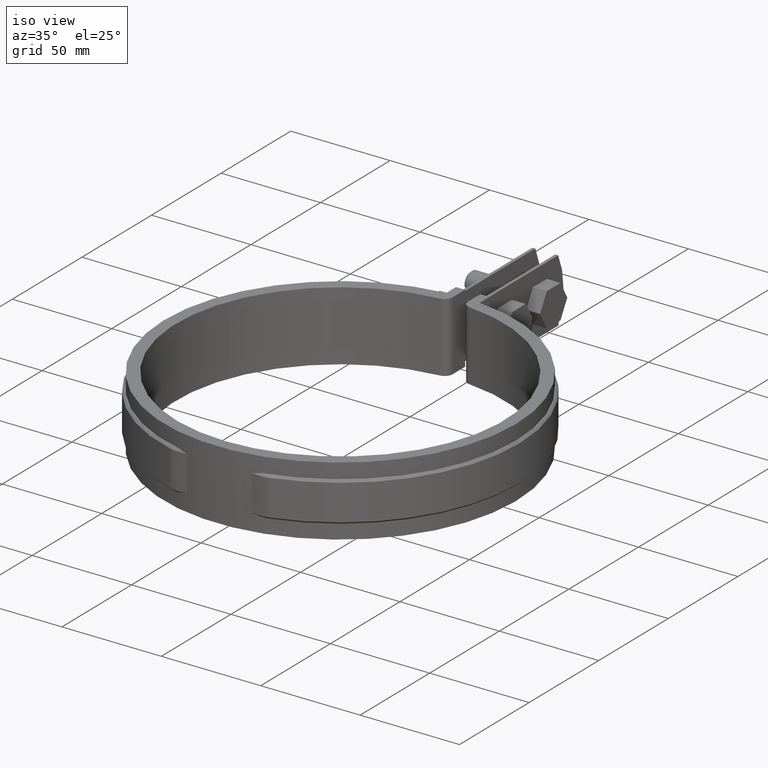
[diagram: clean part render]
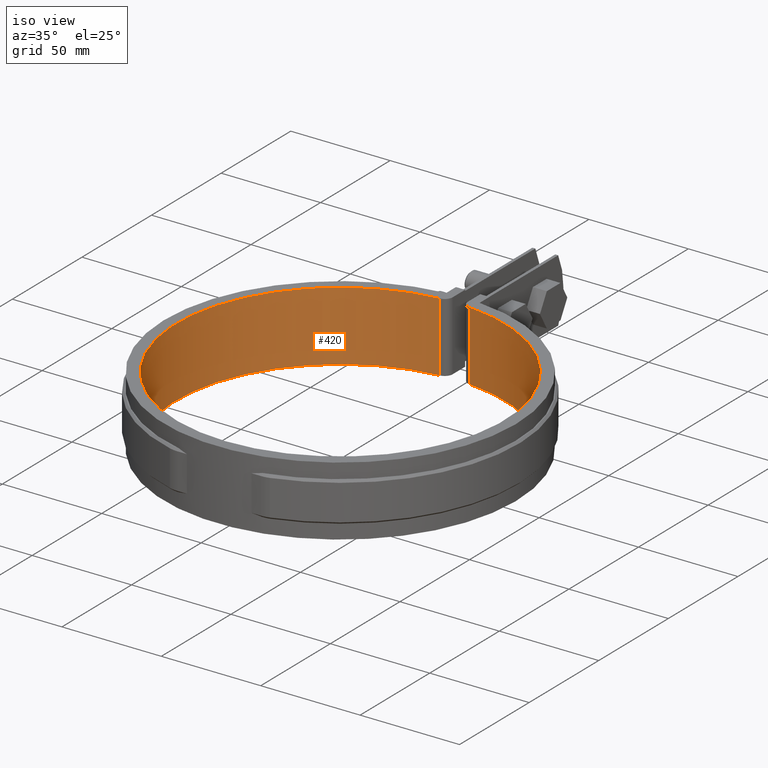
[diagram: tour spotlight — one face highlighted and labeled with its STEP entity id]
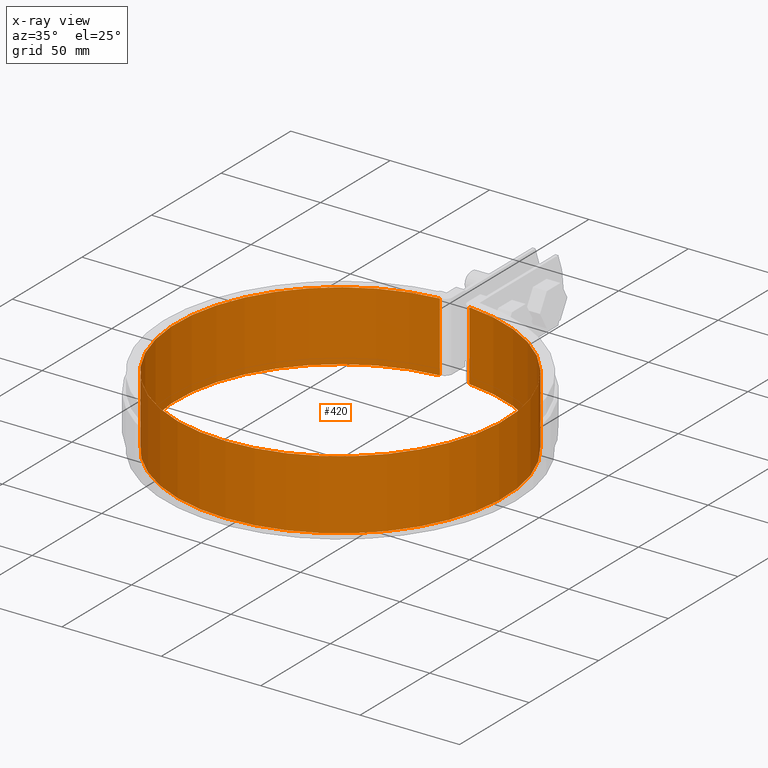
[diagram: x-ray of the same camera — body ghosted, this tour face saturated]
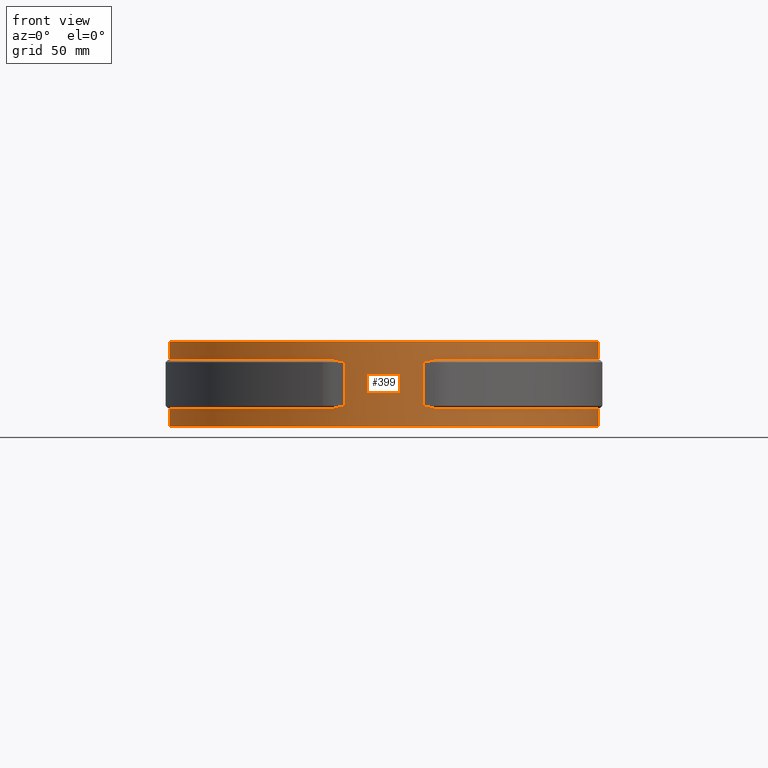
[diagram: tour spotlight — one face highlighted and labeled with its STEP entity id]
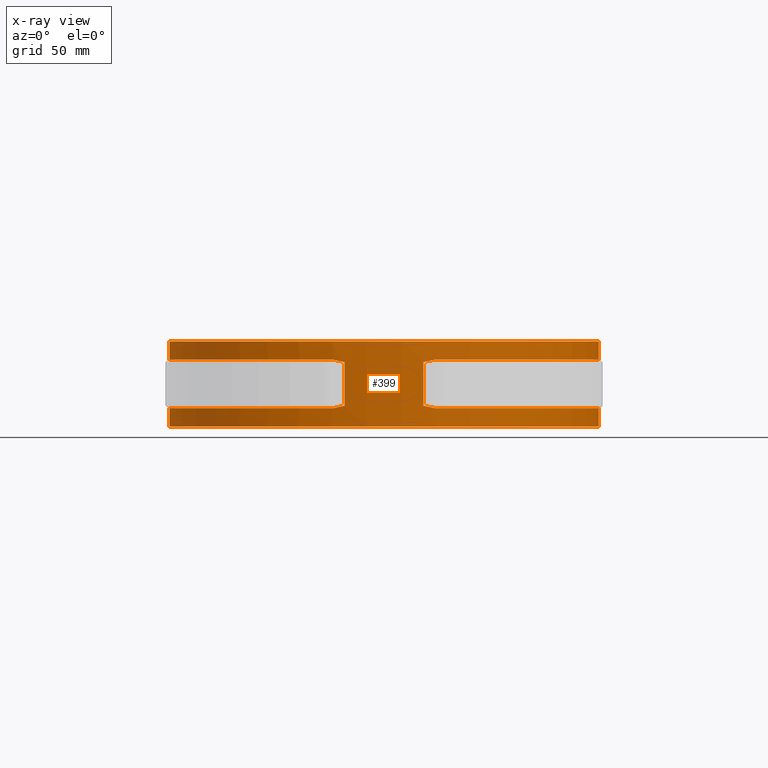
[diagram: x-ray of the same camera — body ghosted, this tour face saturated]
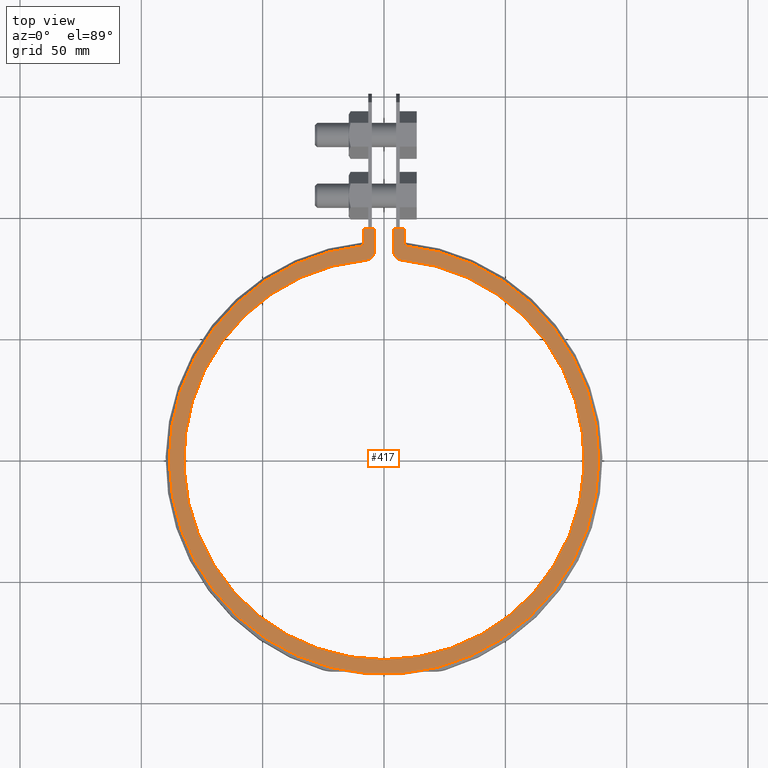
[diagram: tour spotlight — one face highlighted and labeled with its STEP entity id]
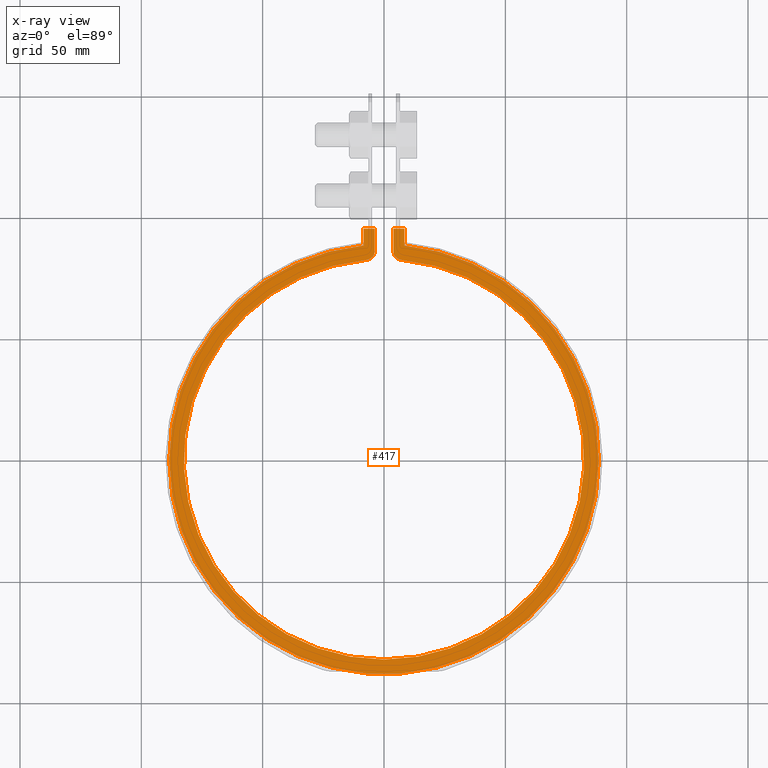
[diagram: x-ray of the same camera — body ghosted, this tour face saturated]
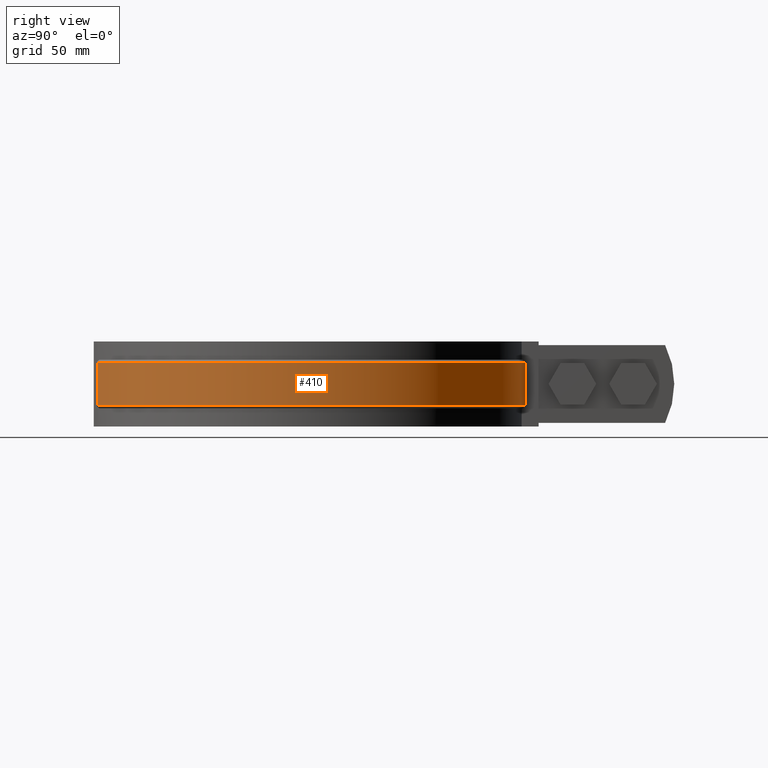
[diagram: tour spotlight — one face highlighted and labeled with its STEP entity id]
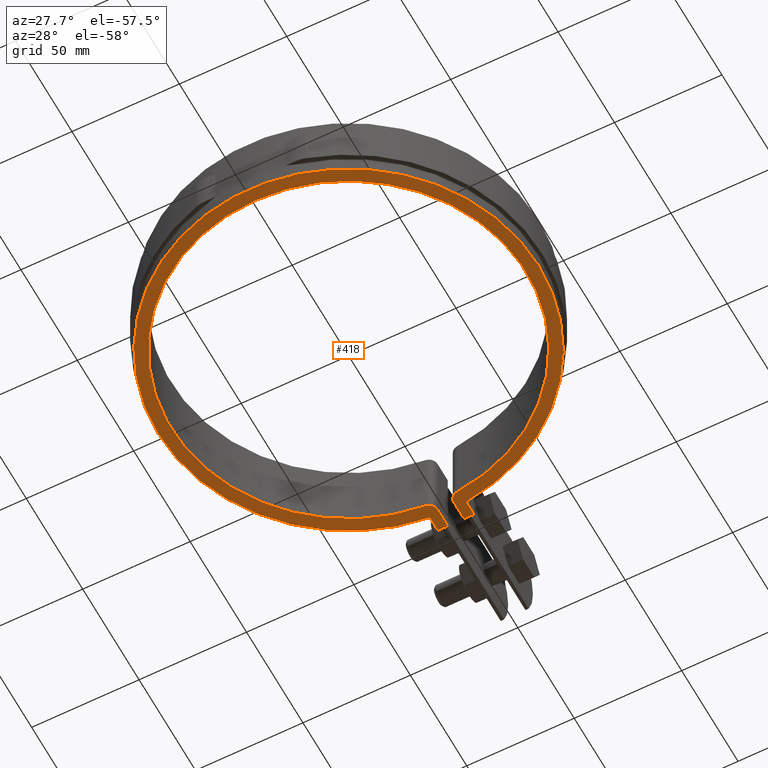
[diagram: tour spotlight — one face highlighted and labeled with its STEP entity id]
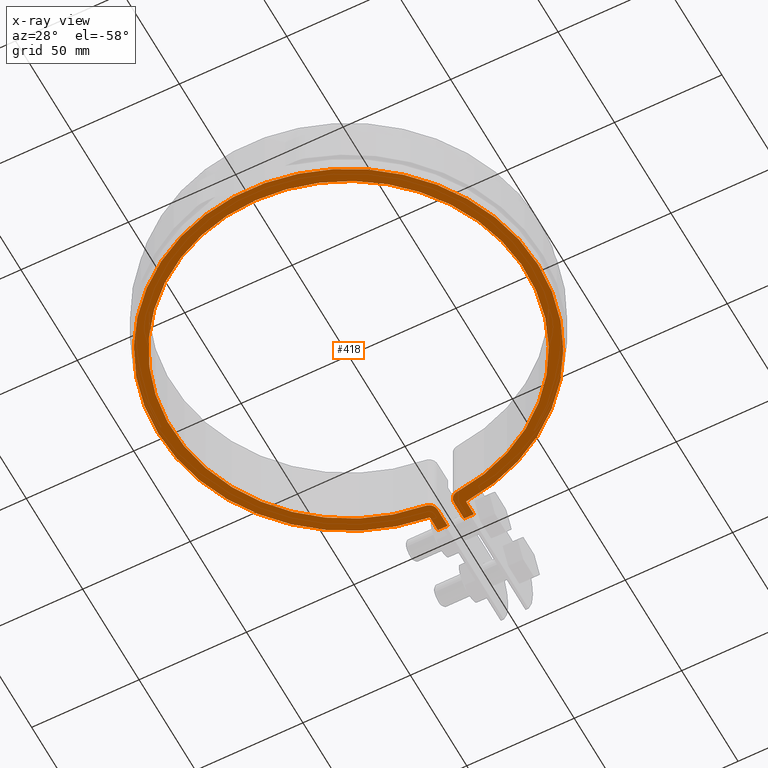
[diagram: x-ray of the same camera — body ghosted, this tour face saturated]
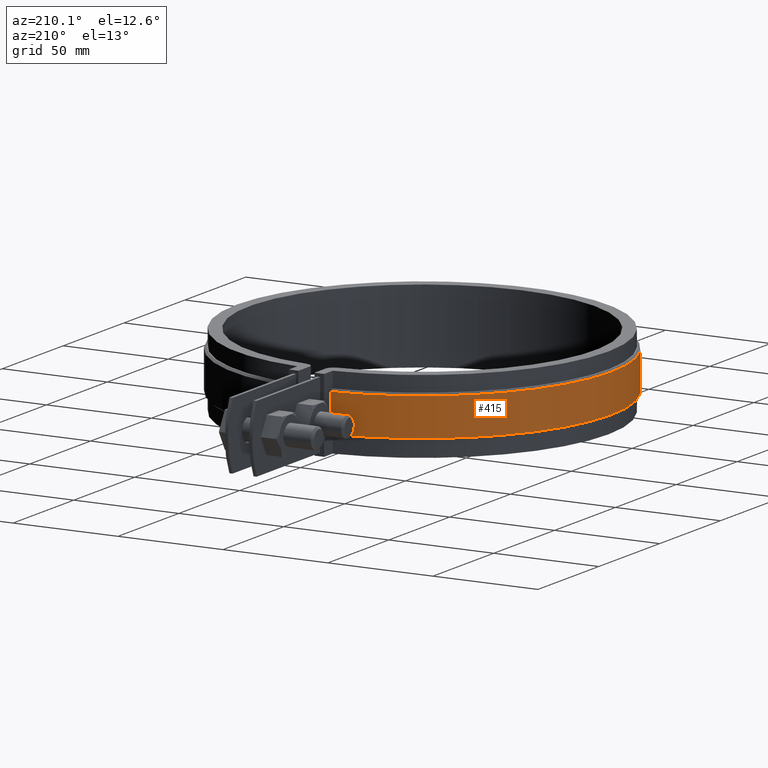
[diagram: tour spotlight — one face highlighted and labeled with its STEP entity id]
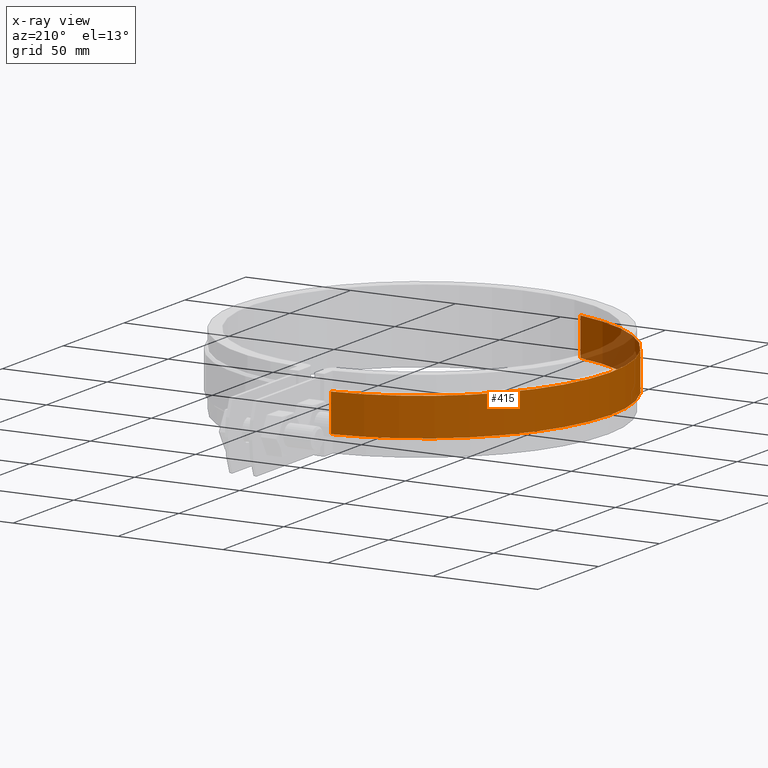
[diagram: x-ray of the same camera — body ghosted, this tour face saturated]
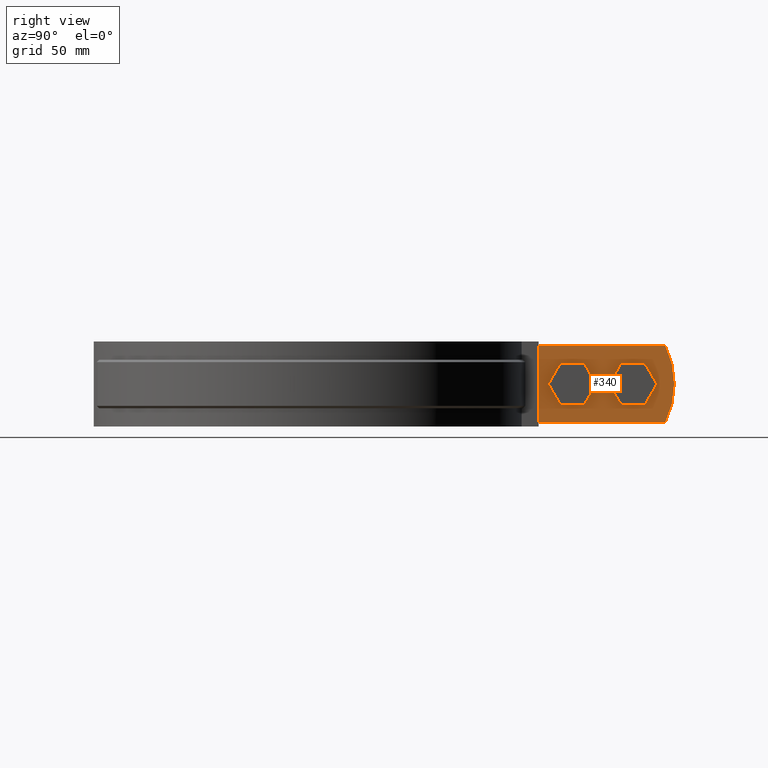
[diagram: tour spotlight — one face highlighted and labeled with its STEP entity id]
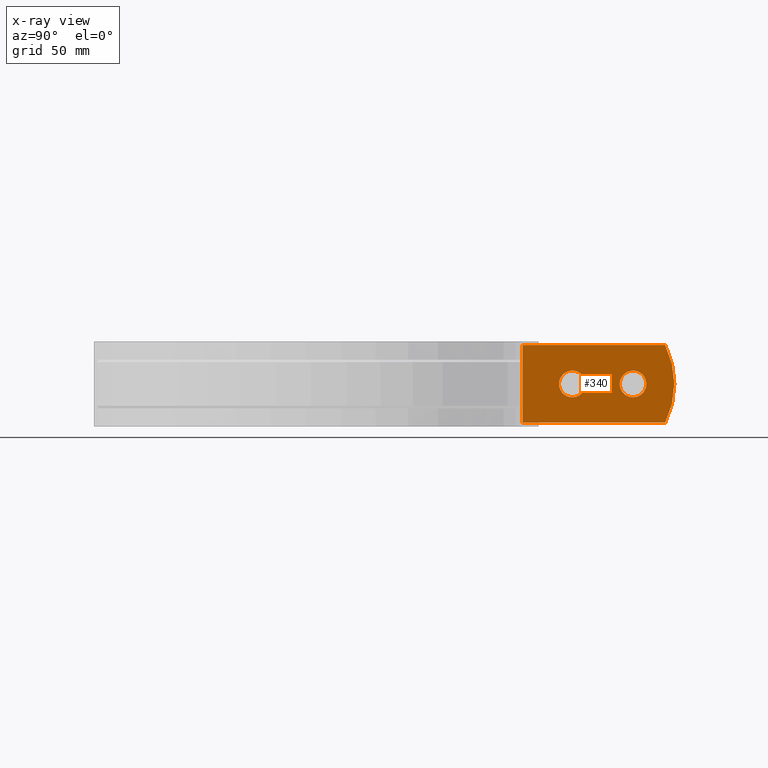
[diagram: x-ray of the same camera — body ghosted, this tour face saturated]
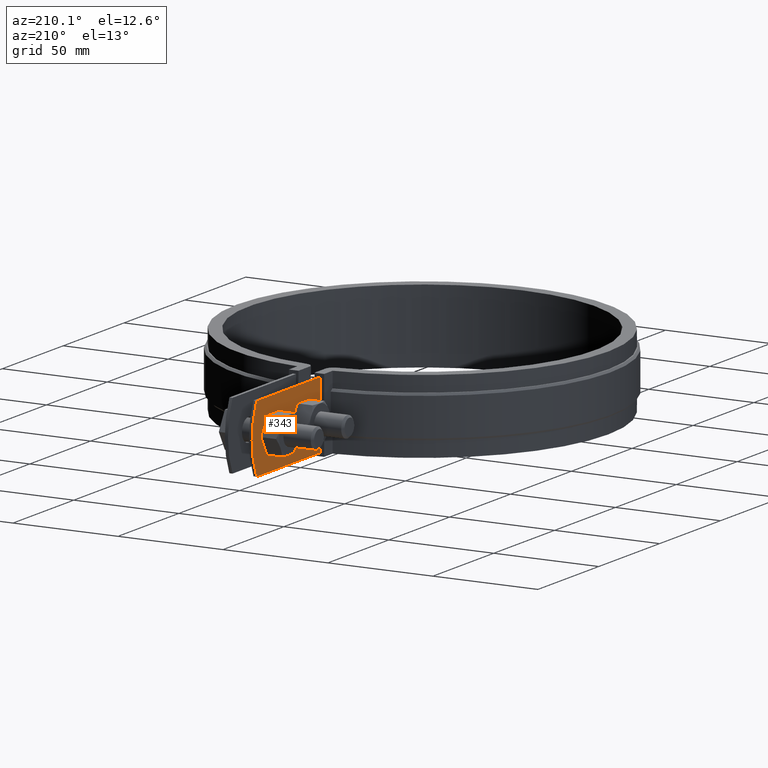
[diagram: tour spotlight — one face highlighted and labeled with its STEP entity id]
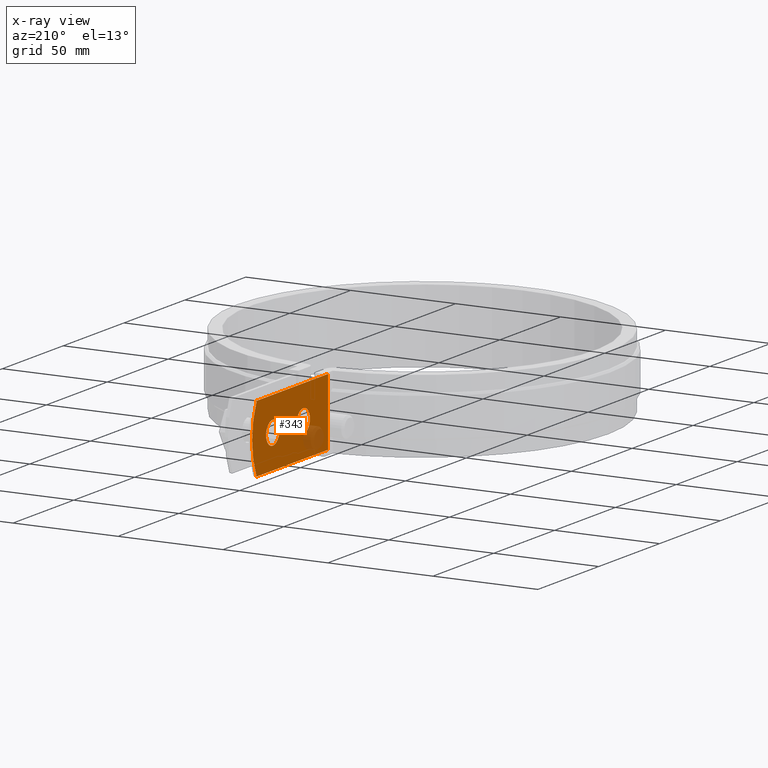
[diagram: x-ray of the same camera — body ghosted, this tour face saturated]
A machine part: a face-by-face anatomy tour. The part has 150 B-rep faces; the first image is the clean iso view, then the 8 largest visible faces are spotlighted one at a time (largest first), each with its STEP entity span.

Face 1 — iso view, entity #420. An x-ray twin of the same camera follows (body ghosted, this face saturated) — the face is partly hidden behind the body. In plain terms, the highlighted cylindrical surface (partial cylindrical patch) has radius 82.5 mm, axis along (0, 0, -1).
Definition (entity closure, byte-faithful):
#420 = ADVANCED_FACE( '', ( #704 ), #705, .F. );
#704 = FACE_OUTER_BOUND( '', #1790, .T. );
#705 = CYLINDRICAL_SURFACE( '', #1791, 82.5000000000000 );
#1790 = EDGE_LOOP( '', ( #4229, #4230, #4231, #4232 ) );
#1791 = AXIS2_PLACEMENT_3D( '', #4233, #4234, #4235 );
#4229 = ORIENTED_EDGE( '', *, *, #4900, .F. );
#4230 = ORIENTED_EDGE( '', *, *, #4907, .F. );
#4231 = ORIENTED_EDGE( '', *, *, #4903, .T. );
#4232 = ORIENTED_EDGE( '', *, *, #4906, .T. );
#4233 = CARTESIAN_POINT( '', ( 0.000000000000000, 0.000000000000000, -33.5000000000000 ) );
#4234 = DIRECTION( '', ( 0.000000000000000, 0.000000000000000, -1.00000000000000 ) );
#4235 = DIRECTION( '', ( 0.000000000000000, 1.00000000000000, 0.000000000000000 ) );
#4900 = EDGE_CURVE( '', #5488, #5490, #5491, .T. );
#4903 = EDGE_CURVE( '', #5495, #5493, #5496, .T. );
#4906 = EDGE_CURVE( '', #5493, #5490, #5499, .T. );
#4907 = EDGE_CURVE( '', #5495, #5488, #5500, .T. );
#5488 = VERTEX_POINT( '', #8344 );
#5490 = VERTEX_POINT( '', #8346 );
#5491 = CIRCLE( '', #8347, 82.5000000000000 );
#5493 = VERTEX_POINT( '', #8349 );
#5495 = VERTEX_POINT( '', #8351 );
#5496 = CIRCLE( '', #8352, 82.5000000000000 );
#5499 = LINE( '', #8356, #8357 );
#5500 = LINE( '', #8358, #8359 );
#8344 = CARTESIAN_POINT( '', ( 7.43930635838155, 82.1639015681835, 1.50000000000000 ) );
#8346 = CARTESIAN_POINT( '', ( -7.43930635838159, 82.1639015681835, 1.50000000000000 ) );
#8347 = AXIS2_PLACEMENT_3D( '', #9020, #9021, #9022 );
#8349 = CARTESIAN_POINT( '', ( -7.43930635838159, 82.1639015681835, -33.5000000000000 ) );
#8351 = CARTESIAN_POINT( '', ( 7.43930635838155, 82.1639015681835, -33.5000000000000 ) );
#8352 = AXIS2_PLACEMENT_3D( '', #9029, #9030, #9031 );
#8356 = CARTESIAN_POINT( '', ( -7.43930635838159, 82.1639015681835, -33.5000000000000 ) );
#8357 = VECTOR( '', #9036, 1000.00000000000 );
#8358 = CARTESIAN_POINT( '', ( 7.43930635838155, 82.1639015681835, -33.5000000000000 ) );
#8359 = VECTOR( '', #9037, 1000.00000000000 );
#9020 = CARTESIAN_POINT( '', ( 0.000000000000000, 0.000000000000000, 1.50000000000000 ) );
#9021 = DIRECTION( '', ( 0.000000000000000, 0.000000000000000, -1.00000000000000 ) );
#9022 = DIRECTION( '', ( 1.00000000000000, 0.000000000000000, 0.000000000000000 ) );
#9029 = CARTESIAN_POINT( '', ( 0.000000000000000, 0.000000000000000, -33.5000000000000 ) );
#9030 = DIRECTION( '', ( 0.000000000000000, 0.000000000000000, -1.00000000000000 ) );
#9031 = DIRECTION( '', ( 1.00000000000000, 0.000000000000000, 0.000000000000000 ) );
#9036 = DIRECTION( '', ( 0.000000000000000, 0.000000000000000, 1.00000000000000 ) );
#9037 = DIRECTION( '', ( 0.000000000000000, 0.000000000000000, 1.00000000000000 ) );

Face 2 — front view, entity #399. An x-ray twin of the same camera follows (body ghosted, this face saturated) — the face is partly hidden behind the body. In plain terms, the highlighted cylindrical surface (partial cylindrical patch) has radius 88.5 mm, axis along (0, 0, -1).
Definition (entity closure, byte-faithful):
#399 = ADVANCED_FACE( '', ( #662 ), #663, .T. );
#662 = FACE_OUTER_BOUND( '', #1748, .T. );
#663 = CYLINDRICAL_SURFACE( '', #1749, 88.5000000000000 );
#1748 = EDGE_LOOP( '', ( #4048, #4049, #4050, #4051, #4052, #4053, #4054, #4055, #4056, #4057, #4058, #4059, #4060, #4061, #4062, #4063 ) );
#1749 = AXIS2_PLACEMENT_3D( '', #4064, #4065, #4066 );
#4048 = ORIENTED_EDGE( '', *, *, #4837, .T. );
#4049 = ORIENTED_EDGE( '', *, *, #4838, .T. );
#4050 = ORIENTED_EDGE( '', *, *, #4839, .T. );
#4051 = ORIENTED_EDGE( '', *, *, #4840, .T. );
#4052 = ORIENTED_EDGE( '', *, *, #4841, .T. );
#4053 = ORIENTED_EDGE( '', *, *, #4842, .F. );
#4054 = ORIENTED_EDGE( '', *, *, #4843, .T. );
#4055 = ORIENTED_EDGE( '', *, *, #4844, .F. );
#4056 = ORIENTED_EDGE( '', *, *, #4845, .F. );
#4057 = ORIENTED_EDGE( '', *, *, #4846, .T. );
#4058 = ORIENTED_EDGE( '', *, *, #4847, .T. );
#4059 = ORIENTED_EDGE( '', *, *, #4848, .F. );
#4060 = ORIENTED_EDGE( '', *, *, #4849, .T. );
#4061 = ORIENTED_EDGE( '', *, *, #4850, .F. );
#4062 = ORIENTED_EDGE( '', *, *, #4851, .F. );
#4063 = ORIENTED_EDGE( '', *, *, #4852, .T. );
#4064 = CARTESIAN_POINT( '', ( 0.000000000000000, 0.000000000000000, -33.5000000000000 ) );
#4065 = DIRECTION( '', ( 0.000000000000000, 0.000000000000000, -1.00000000000000 ) );
#4066 = DIRECTION( '', ( 0.000000000000000, 1.00000000000000, 0.000000000000000 ) );
#4837 = EDGE_CURVE( '', #5384, #5385, #5386, .T. );
#4838 = EDGE_CURVE( '', #5385, #5387, #5388, .T. );
#4839 = EDGE_CURVE( '', #5387, #5389, #5390, .T. );
#4840 = EDGE_CURVE( '', #5389, #5391, #5392, .T. );
#4841 = EDGE_CURVE( '', #5391, #5393, #5394, .F. );
#4842 = EDGE_CURVE( '', #5395, #5393, #5396, .T. );
#4843 = EDGE_CURVE( '', #5395, #5397, #5398, .T. );
#4844 = EDGE_CURVE( '', #5399, #5397, #5400, .T. );
#4845 = EDGE_CURVE( '', #5401, #5399, #5402, .T. );
#4846 = EDGE_CURVE( '', #5401, #5403, #5404, .T. );
#4847 = EDGE_CURVE( '', #5403, #5405, #5406, .F. );
#4848 = EDGE_CURVE( '', #5407, #5405, #5408, .T. );
#4849 = EDGE_CURVE( '', #5407, #5409, #5410, .T. );
#4850 = EDGE_CURVE( '', #5411, #5409, #5412, .T. );
#4851 = EDGE_CURVE( '', #5413, #5411, #5414, .T. );
#4852 = EDGE_CURVE( '', #5413, #5384, #5415, .T. );
#5384 = VERTEX_POINT( '', #8200 );
#5385 = VERTEX_POINT( '', #8201 );
#5386 = LINE( '', #8202, #8203 );
#5387 = VERTEX_POINT( '', #8204 );
#5388 = CIRCLE( '', #8205, 88.5000000000000 );
#5389 = VERTEX_POINT( '', #8206 );
#5390 = ELLIPSE( '', #8207, 125.157900270019, 88.5000000000000 );
#5391 = VERTEX_POINT( '', #8208 );
#5392 = LINE( '', #8209, #8210 );
#5393 = VERTEX_POINT( '', #8211 );
#5394 = ELLIPSE( '', #8212, 125.157900270019, 88.5000000000000 );
#5395 = VERTEX_POINT( '', #8213 );
#5396 = CIRCLE( '', #8214, 88.5000000000000 );
#5397 = VERTEX_POINT( '', #8215 );
#5398 = LINE( '', #8216, #8217 );
#5399 = VERTEX_POINT( '', #8218 );
#5400 = CIRCLE( '', #8219, 88.5000000000000 );
#5401 = VERTEX_POINT( '', #8220 );
#5402 = LINE( '', #8221, #8222 );
#5403 = VERTEX_POINT( '', #8223 );
#5404 = CIRCLE( '', #8224, 88.5000000000000 );
#5405 = VERTEX_POINT( '', #8225 );
#5406 = ELLIPSE( '', #8226, 125.157900270019, 88.5000000000000 );
#5407 = VERTEX_POINT( '', #8227 );
#5408 = LINE( '', #8228, #8229 );
#5409 = VERTEX_POINT( '', #8230 );
#5410 = ELLIPSE( '', #8231, 125.157900270019, 88.5000000000000 );
#5411 = VERTEX_POINT( '', #8232 );
#5412 = CIRCLE( '', #8233, 88.5000000000000 );
#5413 = VERTEX_POINT( '', #8234 );
#5414 = LINE( '', #8235, #8236 );
#5415 = CIRCLE( '', #8237, 88.5000000000000 );
#8200 = CARTESIAN_POINT( '', ( 8.40000000000001, 88.1004540283420, -33.5000000000000 ) );
#8201 = CARTESIAN_POINT( '', ( 8.40000000000001, 88.1004540283420, -26.0000000000000 ) );
#8202 = CARTESIAN_POINT( '', ( 8.40000000000001, 88.1004540283420, -33.5000000000000 ) );
#8203 = VECTOR( '', #8905, 1000.00000000000 );
#8204 = CARTESIAN_POINT( '', ( 20.8865985742057, -86.0000000000000, -26.0000000000000 ) );
#8205 = AXIS2_PLACEMENT_3D( '', #8906, #8907, #8908 );
#8206 = CARTESIAN_POINT( '', ( 16.2249807395880, -87.0000000000001, -25.0000000000000 ) );
#8207 = AXIS2_PLACEMENT_3D( '', #8909, #8910, #8911 );
#8208 = CARTESIAN_POINT( '', ( 16.2249807395880, -87.0000000000001, -7.00000000000001 ) );
#8209 = CARTESIAN_POINT( '', ( 16.2249807395880, -87.0000000000001, -26.0000000000000 ) );
#8210 = VECTOR( '', #8912, 1000.00000000000 );
#8211 = CARTESIAN_POINT( '', ( 20.8865985742057, -86.0000000000000, -6.00000000000000 ) );
#8212 = AXIS2_PLACEMENT_3D( '', #8913, #8914, #8915 );
#8213 = CARTESIAN_POINT( '', ( 8.40000000000003, 88.1004540283419, -6.00000000000000 ) );
#8214 = AXIS2_PLACEMENT_3D( '', #8916, #8917, #8918 );
#8215 = CARTESIAN_POINT( '', ( 8.40000000000001, 88.1004540283420, 1.50000000000000 ) );
#8216 = CARTESIAN_POINT( '', ( 8.40000000000001, 88.1004540283420, -33.5000000000000 ) );
#8217 = VECTOR( '', #8919, 1000.00000000000 );
#8218 = CARTESIAN_POINT( '', ( -8.40000000000000, 88.1004540283420, 1.50000000000000 ) );
#8219 = AXIS2_PLACEMENT_3D( '', #8920, #8921, #8922 );
#8220 = CARTESIAN_POINT( '', ( -8.40000000000001, 88.1004540283420, -6.00000000000000 ) );
#8221 = CARTESIAN_POINT( '', ( -8.40000000000000, 88.1004540283420, -33.5000000000000 ) );
#8222 = VECTOR( '', #8923, 1000.00000000000 );
#8223 = CARTESIAN_POINT( '', ( -20.8865985742055, -86.0000000000000, -6.00000000000000 ) );
#8224 = AXIS2_PLACEMENT_3D( '', #8924, #8925, #8926 );
#8225 = CARTESIAN_POINT( '', ( -16.2249807395880, -87.0000000000000, -7.00000000000000 ) );
#8226 = AXIS2_PLACEMENT_3D( '', #8927, #8928, #8929 );
#8227 = CARTESIAN_POINT( '', ( -16.2249807395880, -87.0000000000000, -25.0000000000000 ) );
#8228 = CARTESIAN_POINT( '', ( -16.2249807395880, -87.0000000000000, -26.0000000000000 ) );
#8229 = VECTOR( '', #8930, 1000.00000000000 );
#8230 = CARTESIAN_POINT( '', ( -20.8865985742055, -86.0000000000000, -26.0000000000000 ) );
#8231 = AXIS2_PLACEMENT_3D( '', #8931, #8932, #8933 );
#8232 = CARTESIAN_POINT( '', ( -8.40000000000001, 88.1004540283420, -26.0000000000000 ) );
#8233 = AXIS2_PLACEMENT_3D( '', #8934, #8935, #8936 );
#8234 = CARTESIAN_POINT( '', ( -8.40000000000000, 88.1004540283420, -33.5000000000000 ) );
#8235 = CARTESIAN_POINT( '', ( -8.40000000000000, 88.1004540283420, -33.5000000000000 ) );
#8236 = VECTOR( '', #8937, 1000.00000000000 );
#8237 = AXIS2_PLACEMENT_3D( '', #8938, #8939, #8940 );
#8905 = DIRECTION( '', ( 0.000000000000000, 0.000000000000000, 1.00000000000000 ) );
#8906 = CARTESIAN_POINT( '', ( 1.38777878078145E-014, -4.16333634234434E-014, -26.0000000000000 ) );
#8907 = DIRECTION( '', ( 0.000000000000000, 0.000000000000000, -1.00000000000000 ) );
#8908 = DIRECTION( '', ( 1.00000000000000, 3.33066907387547E-016, 0.000000000000000 ) );
#8909 = CARTESIAN_POINT( '', ( 0.000000000000000, 0.000000000000000, -112.000000000000 ) );
#8910 = DIRECTION( '', ( 3.92523114670944E-017, -0.707106781186548, -0.707106781186547 ) );
#8911 = DIRECTION( '', ( 3.92523114670944E-017, -0.707106781186547, 0.707106781186548 ) );
#8912 = DIRECTION( '', ( 0.000000000000000, 0.000000000000000, 1.00000000000000 ) );
#8913 = CARTESIAN_POINT( '', ( 0.000000000000000, 0.000000000000000, 80.0000000000003 ) );
#8914 = DIRECTION( '', ( -3.92523114670944E-017, 0.707106781186549, -0.707106781186547 ) );
#8915 = DIRECTION( '', ( -3.92523114670943E-017, 0.707106781186547, 0.707106781186548 ) );
#8916 = CARTESIAN_POINT( '', ( 1.38777878078145E-014, -4.16333634234434E-014, -6.00000000000000 ) );
#8917 = DIRECTION( '', ( 0.000000000000000, 0.000000000000000, -1.00000000000000 ) );
#8918 = DIRECTION( '', ( 1.00000000000000, 3.33066907387547E-016, 0.000000000000000 ) );
#8919 = DIRECTION( '', ( 0.000000000000000, 0.000000000000000, 1.00000000000000 ) );
#8920 = CARTESIAN_POINT( '', ( 0.000000000000000, 0.000000000000000, 1.50000000000000 ) );
#8921 = DIRECTION( '', ( 0.000000000000000, 0.000000000000000, 1.00000000000000 ) );
#8922 = DIRECTION( '', ( 1.00000000000000, 0.000000000000000, 0.000000000000000 ) );
#8923 = DIRECTION( '', ( 0.000000000000000, 0.000000000000000, 1.00000000000000 ) );
#8924 = CARTESIAN_POINT( '', ( 0.000000000000000, 0.000000000000000, -6.00000000000000 ) );
#8925 = DIRECTION( '', ( 0.000000000000000, 0.000000000000000, 1.00000000000000 ) );
#8926 = DIRECTION( '', ( 1.00000000000000, -1.11022302462516E-016, 0.000000000000000 ) );
#8927 = CARTESIAN_POINT( '', ( 0.000000000000000, 0.000000000000000, 79.9999999999998 ) );
#8928 = DIRECTION( '', ( 3.92523114670943E-017, 0.707106781186547, -0.707106781186548 ) );
#8929 = DIRECTION( '', ( 3.92523114670944E-017, 0.707106781186548, 0.707106781186547 ) );
#8930 = DIRECTION( '', ( 0.000000000000000, 0.000000000000000, 1.00000000000000 ) );
#8931 = CARTESIAN_POINT( '', ( 0.000000000000000, 0.000000000000000, -112.000000000000 ) );
#8932 = DIRECTION( '', ( -3.92523114670944E-017, -0.707106781186548, -0.707106781186547 ) );
#8933 = DIRECTION( '', ( -3.92523114670944E-017, -0.707106781186547, 0.707106781186548 ) );
#8934 = CARTESIAN_POINT( '', ( 0.000000000000000, 0.000000000000000, -26.0000000000000 ) );
#8935 = DIRECTION( '', ( 0.000000000000000, 0.000000000000000, 1.00000000000000 ) );
#8936 = DIRECTION( '', ( 1.00000000000000, -1.11022302462516E-016, 0.000000000000000 ) );
#8937 = DIRECTION( '', ( 0.000000000000000, 0.000000000000000, 1.00000000000000 ) );
#8938 = CARTESIAN_POINT( '', ( 0.000000000000000, 0.000000000000000, -33.5000000000000 ) );
#8939 = DIRECTION( '', ( 0.000000000000000, 0.000000000000000, 1.00000000000000 ) );
#8940 = DIRECTION( '', ( 1.00000000000000, 0.000000000000000, 0.000000000000000 ) );

Face 3 — top view, entity #417. An x-ray twin of the same camera follows (body ghosted, this face saturated) — the face is partly hidden behind the body. In plain terms, the highlighted planar face has unit normal (0, 0, 1).
Definition (entity closure, byte-faithful):
#417 = ADVANCED_FACE( '', ( #698 ), #699, .T. );
#698 = FACE_OUTER_BOUND( '', #1784, .T. );
#699 = PLANE( '', #1785 );
#1784 = EDGE_LOOP( '', ( #4196, #4197, #4198, #4199, #4200, #4201, #4202, #4203, #4204, #4205 ) );
#1785 = AXIS2_PLACEMENT_3D( '', #4206, #4207, #4208 );
#4196 = ORIENTED_EDGE( '', *, *, #4769, .T. );
#4197 = ORIENTED_EDGE( '', *, *, #4761, .T. );
#4198 = ORIENTED_EDGE( '', *, *, #4858, .T. );
#4199 = ORIENTED_EDGE( '', *, *, #4844, .T. );
#4200 = ORIENTED_EDGE( '', *, *, #4898, .T. );
#4201 = ORIENTED_EDGE( '', *, *, #4831, .T. );
#4202 = ORIENTED_EDGE( '', *, *, #4860, .T. );
#4203 = ORIENTED_EDGE( '', *, *, #4899, .T. );
#4204 = ORIENTED_EDGE( '', *, *, #4900, .T. );
#4205 = ORIENTED_EDGE( '', *, *, #4901, .T. );
#4206 = CARTESIAN_POINT( '', ( 0.000000000000000, 0.000000000000000, 1.50000000000000 ) );
#4207 = DIRECTION( '', ( 0.000000000000000, 0.000000000000000, 1.00000000000000 ) );
#4208 = DIRECTION( '', ( 0.000000000000000, 1.00000000000000, 0.000000000000000 ) );
#4761 = EDGE_CURVE( '', #5252, #5253, #5254, .T. );
#4769 = EDGE_CURVE( '', #5268, #5252, #5269, .T. );
#4831 = EDGE_CURVE( '', #5374, #5375, #5376, .T. );
#4844 = EDGE_CURVE( '', #5399, #5397, #5400, .T. );
#4858 = EDGE_CURVE( '', #5253, #5399, #5425, .T. );
#4860 = EDGE_CURVE( '', #5375, #5427, #5428, .T. );
#4898 = EDGE_CURVE( '', #5397, #5374, #5487, .T. );
#4899 = EDGE_CURVE( '', #5427, #5488, #5489, .T. );
#4900 = EDGE_CURVE( '', #5488, #5490, #5491, .T. );
#4901 = EDGE_CURVE( '', #5490, #5268, #5492, .T. );
#5252 = VERTEX_POINT( '', #7028 );
#5253 = VERTEX_POINT( '', #7029 );
#5254 = LINE( '', #7030, #7031 );
#5268 = VERTEX_POINT( '', #7052 );
#5269 = LINE( '', #7053, #7054 );
#5374 = VERTEX_POINT( '', #8184 );
#5375 = VERTEX_POINT( '', #8185 );
#5376 = LINE( '', #8186, #8187 );
#5397 = VERTEX_POINT( '', #8215 );
#5399 = VERTEX_POINT( '', #8218 );
#5400 = CIRCLE( '', #8219, 88.5000000000000 );
#5425 = LINE( '', #8256, #8257 );
#5427 = VERTEX_POINT( '', #8260 );
#5428 = LINE( '', #8261, #8262 );
#5487 = LINE( '', #8342, #8343 );
#5488 = VERTEX_POINT( '', #8344 );
#5489 = CIRCLE( '', #8345, 4.00000000000000 );
#5490 = VERTEX_POINT( '', #8346 );
#5491 = CIRCLE( '', #8347, 82.5000000000000 );
#5492 = CIRCLE( '', #8348, 4.00000000000000 );
#7028 = CARTESIAN_POINT( '', ( -3.80000000000000, 95.1000000000000, 1.50000000000000 ) );
#7029 = CARTESIAN_POINT( '', ( -8.40000000000002, 95.1000000000000, 1.50000000000000 ) );
#7030 = CARTESIAN_POINT( '', ( -3.80000000000000, 95.1000000000000, 1.50000000000000 ) );
#7031 = VECTOR( '', #8833, 1000.00000000000 );
#7052 = CARTESIAN_POINT( '', ( -3.79999999999999, 86.1476058866409, 1.50000000000000 ) );
#7053 = CARTESIAN_POINT( '', ( -3.79999999999999, 86.1476058866409, 1.50000000000000 ) );
#7054 = VECTOR( '', #8841, 1000.00000000000 );
#8184 = CARTESIAN_POINT( '', ( 8.40000000000000, 95.1000000000000, 1.50000000000000 ) );
#8185 = CARTESIAN_POINT( '', ( 3.80000000000003, 95.1000000000000, 1.50000000000000 ) );
#8186 = CARTESIAN_POINT( '', ( 8.40000000000002, 95.1000000000000, 1.50000000000000 ) );
#8187 = VECTOR( '', #8899, 1000.00000000000 );
#8215 = CARTESIAN_POINT( '', ( 8.40000000000001, 88.1004540283420, 1.50000000000000 ) );
#8218 = CARTESIAN_POINT( '', ( -8.40000000000000, 88.1004540283420, 1.50000000000000 ) );
#8219 = AXIS2_PLACEMENT_3D( '', #8920, #8921, #8922 );
#8256 = CARTESIAN_POINT( '', ( -8.40000000000000, 95.1000000000000, 1.50000000000000 ) );
#8257 = VECTOR( '', #8944, 1000.00000000000 );
#8260 = CARTESIAN_POINT( '', ( 3.80000000000002, 86.1476058866408, 1.50000000000000 ) );
#8261 = CARTESIAN_POINT( '', ( 3.80000000000002, 95.1000000000000, 1.50000000000000 ) );
#8262 = VECTOR( '', #8946, 1000.00000000000 );
#8342 = CARTESIAN_POINT( '', ( 8.40000000000000, 88.1004540283420, 1.50000000000000 ) );
#8343 = VECTOR( '', #9016, 1000.00000000000 );
#8344 = CARTESIAN_POINT( '', ( 7.43930635838155, 82.1639015681835, 1.50000000000000 ) );
#8345 = AXIS2_PLACEMENT_3D( '', #9017, #9018, #9019 );
#8346 = CARTESIAN_POINT( '', ( -7.43930635838159, 82.1639015681835, 1.50000000000000 ) );
#8347 = AXIS2_PLACEMENT_3D( '', #9020, #9021, #9022 );
#8348 = AXIS2_PLACEMENT_3D( '', #9023, #9024, #9025 );
#8833 = DIRECTION( '', ( -1.00000000000000, 0.000000000000000, 0.000000000000000 ) );
#8841 = DIRECTION( '', ( 6.10365667473321E-017, 1.00000000000000, 0.000000000000000 ) );
#8899 = DIRECTION( '', ( -1.00000000000000, 0.000000000000000, 0.000000000000000 ) );
#8920 = CARTESIAN_POINT( '', ( 0.000000000000000, 0.000000000000000, 1.50000000000000 ) );
#8921 = DIRECTION( '', ( 0.000000000000000, 0.000000000000000, 1.00000000000000 ) );
#8922 = DIRECTION( '', ( 1.00000000000000, 0.000000000000000, 0.000000000000000 ) );
#8944 = DIRECTION( '', ( -6.42490176287706E-017, -1.00000000000000, 0.000000000000000 ) );
#8946 = DIRECTION( '', ( -6.10365667473321E-017, -1.00000000000000, 0.000000000000000 ) );
#9016 = DIRECTION( '', ( 6.42490176287706E-017, 1.00000000000000, 0.000000000000000 ) );
#9017 = CARTESIAN_POINT( '', ( 7.80000000000001, 86.1476058866409, 1.50000000000000 ) );
#9018 = DIRECTION( '', ( 0.000000000000000, 0.000000000000000, 1.00000000000000 ) );
#9019 = DIRECTION( '', ( -1.00000000000000, 0.000000000000000, 0.000000000000000 ) );
#9020 = CARTESIAN_POINT( '', ( 0.000000000000000, 0.000000000000000, 1.50000000000000 ) );
#9021 = DIRECTION( '', ( 0.000000000000000, 0.000000000000000, -1.00000000000000 ) );
#9022 = DIRECTION( '', ( 1.00000000000000, 0.000000000000000, 0.000000000000000 ) );
#9023 = CARTESIAN_POINT( '', ( -7.79999999999999, 86.1476058866409, 1.50000000000000 ) );
#9024 = DIRECTION( '', ( 0.000000000000000, 0.000000000000000, 1.00000000000000 ) );
#9025 = DIRECTION( '', ( 1.00000000000000, 0.000000000000000, 0.000000000000000 ) );

Face 4 — right view, entity #410. In plain terms, the highlighted cylindrical surface (partial cylindrical patch) has radius 90 mm, axis along (0, 0, -1).
Definition (entity closure, byte-faithful):
#410 = ADVANCED_FACE( '', ( #684 ), #685, .T. );
#684 = FACE_OUTER_BOUND( '', #1770, .T. );
#685 = CYLINDRICAL_SURFACE( '', #1771, 90.0000000000000 );
#1770 = EDGE_LOOP( '', ( #4145, #4146, #4147, #4148 ) );
#1771 = AXIS2_PLACEMENT_3D( '', #4149, #4150, #4151 );
#4145 = ORIENTED_EDGE( '', *, *, #4888, .T. );
#4146 = ORIENTED_EDGE( '', *, *, #4889, .T. );
#4147 = ORIENTED_EDGE( '', *, *, #4890, .F. );
#4148 = ORIENTED_EDGE( '', *, *, #4891, .T. );
#4149 = CARTESIAN_POINT( '', ( 1.38777878078145E-014, -4.16333634234434E-014, -26.0000000000000 ) );
#4150 = DIRECTION( '', ( 0.000000000000000, 0.000000000000000, -1.00000000000000 ) );
#4151 = DIRECTION( '', ( 0.280000000000000, -0.960000000000000, 0.000000000000000 ) );
#4888 = EDGE_CURVE( '', #5473, #5474, #5475, .T. );
#4889 = EDGE_CURVE( '', #5474, #5476, #5477, .F. );
#4890 = EDGE_CURVE( '', #5478, #5476, #5479, .T. );
#4891 = EDGE_CURVE( '', #5478, #5473, #5480, .T. );
#5473 = VERTEX_POINT( '', #8322 );
#5474 = VERTEX_POINT( '', #8323 );
#5475 = LINE( '', #8324, #8325 );
#5476 = VERTEX_POINT( '', #8326 );
#5477 = CIRCLE( '', #8327, 90.0000000000000 );
#5478 = VERTEX_POINT( '', #8328 );
#5479 = LINE( '', #8329, #8330 );
#5480 = CIRCLE( '', #8331, 90.0000000000000 );
#8322 = CARTESIAN_POINT( '', ( 8.39999999999997, 89.6071425724534, -25.0000000000000 ) );
#8323 = CARTESIAN_POINT( '', ( 8.39999999999997, 89.6071425724534, -7.00000000000001 ) );
#8324 = CARTESIAN_POINT( '', ( 8.39999999999997, 89.6071425724534, -26.0000000000000 ) );
#8325 = VECTOR( '', #8998, 1000.00000000000 );
#8326 = CARTESIAN_POINT( '', ( 25.2000000000000, -86.4000000000000, -7.00000000000001 ) );
#8327 = AXIS2_PLACEMENT_3D( '', #8999, #9000, #9001 );
#8328 = CARTESIAN_POINT( '', ( 25.2000000000000, -86.4000000000000, -25.0000000000000 ) );
#8329 = CARTESIAN_POINT( '', ( 25.2000000000000, -86.4000000000000, -26.0000000000000 ) );
#8330 = VECTOR( '', #9002, 1000.00000000000 );
#8331 = AXIS2_PLACEMENT_3D( '', #9003, #9004, #9005 );
#8998 = DIRECTION( '', ( 0.000000000000000, 0.000000000000000, 1.00000000000000 ) );
#8999 = CARTESIAN_POINT( '', ( 1.38777878078145E-014, -4.16333634234434E-014, -7.00000000000000 ) );
#9000 = DIRECTION( '', ( 0.000000000000000, 0.000000000000000, 1.00000000000000 ) );
#9001 = DIRECTION( '', ( 1.00000000000000, 0.000000000000000, 0.000000000000000 ) );
#9002 = DIRECTION( '', ( 0.000000000000000, 0.000000000000000, 1.00000000000000 ) );
#9003 = CARTESIAN_POINT( '', ( 1.38777878078145E-014, -4.16333634234434E-014, -25.0000000000000 ) );
#9004 = DIRECTION( '', ( 0.000000000000000, 0.000000000000000, 1.00000000000000 ) );
#9005 = DIRECTION( '', ( 1.00000000000000, 0.000000000000000, 0.000000000000000 ) );

Face 5 — auxiliary view, entity #418. An x-ray twin of the same camera follows (body ghosted, this face saturated) — the face is partly hidden behind the body. In plain terms, the highlighted planar face has unit normal (0, 0, 1).
Definition (entity closure, byte-faithful):
#418 = ADVANCED_FACE( '', ( #700 ), #701, .F. );
#700 = FACE_OUTER_BOUND( '', #1786, .T. );
#701 = PLANE( '', #1787 );
#1786 = EDGE_LOOP( '', ( #4209, #4210, #4211, #4212, #4213, #4214, #4215, #4216, #4217, #4218 ) );
#1787 = AXIS2_PLACEMENT_3D( '', #4219, #4220, #4221 );
#4209 = ORIENTED_EDGE( '', *, *, #4771, .F. );
#4210 = ORIENTED_EDGE( '', *, *, #4902, .F. );
#4211 = ORIENTED_EDGE( '', *, *, #4903, .F. );
#4212 = ORIENTED_EDGE( '', *, *, #4904, .F. );
#4213 = ORIENTED_EDGE( '', *, *, #4861, .F. );
#4214 = ORIENTED_EDGE( '', *, *, #4833, .F. );
#4215 = ORIENTED_EDGE( '', *, *, #4905, .F. );
#4216 = ORIENTED_EDGE( '', *, *, #4852, .F. );
#4217 = ORIENTED_EDGE( '', *, *, #4859, .F. );
#4218 = ORIENTED_EDGE( '', *, *, #4763, .F. );
#4219 = CARTESIAN_POINT( '', ( 0.000000000000000, 0.000000000000000, -33.5000000000000 ) );
#4220 = DIRECTION( '', ( 0.000000000000000, 0.000000000000000, 1.00000000000000 ) );
#4221 = DIRECTION( '', ( 0.000000000000000, 1.00000000000000, 0.000000000000000 ) );
#4763 = EDGE_CURVE( '', #5255, #5257, #5258, .T. );
#4771 = EDGE_CURVE( '', #5270, #5255, #5272, .T. );
#4833 = EDGE_CURVE( '', #5377, #5379, #5380, .T. );
#4852 = EDGE_CURVE( '', #5413, #5384, #5415, .T. );
#4859 = EDGE_CURVE( '', #5257, #5413, #5426, .T. );
#4861 = EDGE_CURVE( '', #5379, #5429, #5430, .T. );
#4902 = EDGE_CURVE( '', #5493, #5270, #5494, .T. );
#4903 = EDGE_CURVE( '', #5495, #5493, #5496, .T. );
#4904 = EDGE_CURVE( '', #5429, #5495, #5497, .T. );
#4905 = EDGE_CURVE( '', #5384, #5377, #5498, .T. );
#5255 = VERTEX_POINT( '', #7032 );
#5257 = VERTEX_POINT( '', #7035 );
#5258 = LINE( '', #7036, #7037 );
#5270 = VERTEX_POINT( '', #7055 );
#5272 = LINE( '', #7058, #7059 );
#5377 = VERTEX_POINT( '', #8188 );
#5379 = VERTEX_POINT( '', #8191 );
#5380 = LINE( '', #8192, #8193 );
#5384 = VERTEX_POINT( '', #8200 );
#5413 = VERTEX_POINT( '', #8234 );
#5415 = CIRCLE( '', #8237, 88.5000000000000 );
#5426 = LINE( '', #8258, #8259 );
#5429 = VERTEX_POINT( '', #8263 );
#5430 = LINE( '', #8264, #8265 );
#5493 = VERTEX_POINT( '', #8349 );
#5494 = CIRCLE( '', #8350, 4.00000000000000 );
#5495 = VERTEX_POINT( '', #8351 );
#5496 = CIRCLE( '', #8352, 82.5000000000000 );
#5497 = CIRCLE( '', #8353, 4.00000000000000 );
#5498 = LINE( '', #8354, #8355 );
#7032 = CARTESIAN_POINT( '', ( -3.80000000000000, 95.1000000000000, -33.5000000000000 ) );
#7035 = CARTESIAN_POINT( '', ( -8.40000000000002, 95.1000000000000, -33.5000000000000 ) );
#7036 = CARTESIAN_POINT( '', ( -3.80000000000000, 95.1000000000000, -33.5000000000000 ) );
#7037 = VECTOR( '', #8835, 1000.00000000000 );
#7055 = CARTESIAN_POINT( '', ( -3.79999999999999, 86.1476058866409, -33.5000000000000 ) );
#7058 = CARTESIAN_POINT( '', ( -3.79999999999999, 86.1476058866409, -33.5000000000000 ) );
#7059 = VECTOR( '', #8843, 1000.00000000000 );
#8188 = CARTESIAN_POINT( '', ( 8.40000000000000, 95.1000000000000, -33.5000000000000 ) );
#8191 = CARTESIAN_POINT( '', ( 3.80000000000003, 95.1000000000000, -33.5000000000000 ) );
#8192 = CARTESIAN_POINT( '', ( 8.40000000000002, 95.1000000000000, -33.5000000000000 ) );
#8193 = VECTOR( '', #8901, 1000.00000000000 );
#8200 = CARTESIAN_POINT( '', ( 8.40000000000001, 88.1004540283420, -33.5000000000000 ) );
#8234 = CARTESIAN_POINT( '', ( -8.40000000000000, 88.1004540283420, -33.5000000000000 ) );
#8237 = AXIS2_PLACEMENT_3D( '', #8938, #8939, #8940 );
#8258 = CARTESIAN_POINT( '', ( -8.40000000000000, 95.1000000000000, -33.5000000000000 ) );
#8259 = VECTOR( '', #8945, 1000.00000000000 );
#8263 = CARTESIAN_POINT( '', ( 3.80000000000002, 86.1476058866408, -33.5000000000000 ) );
#8264 = CARTESIAN_POINT( '', ( 3.80000000000002, 95.1000000000000, -33.5000000000000 ) );
#8265 = VECTOR( '', #8947, 1000.00000000000 );
#8349 = CARTESIAN_POINT( '', ( -7.43930635838159, 82.1639015681835, -33.5000000000000 ) );
#8350 = AXIS2_PLACEMENT_3D( '', #9026, #9027, #9028 );
#8351 = CARTESIAN_POINT( '', ( 7.43930635838155, 82.1639015681835, -33.5000000000000 ) );
#8352 = AXIS2_PLACEMENT_3D( '', #9029, #9030, #9031 );
#8353 = AXIS2_PLACEMENT_3D( '', #9032, #9033, #9034 );
#8354 = CARTESIAN_POINT( '', ( 8.40000000000000, 88.1004540283420, -33.5000000000000 ) );
#8355 = VECTOR( '', #9035, 1000.00000000000 );
#8835 = DIRECTION( '', ( -1.00000000000000, 0.000000000000000, 0.000000000000000 ) );
#8843 = DIRECTION( '', ( 6.10365667473321E-017, 1.00000000000000, 0.000000000000000 ) );
#8901 = DIRECTION( '', ( -1.00000000000000, 0.000000000000000, 0.000000000000000 ) );
#8938 = CARTESIAN_POINT( '', ( 0.000000000000000, 0.000000000000000, -33.5000000000000 ) );
#8939 = DIRECTION( '', ( 0.000000000000000, 0.000000000000000, 1.00000000000000 ) );
#8940 = DIRECTION( '', ( 1.00000000000000, 0.000000000000000, 0.000000000000000 ) );
#8945 = DIRECTION( '', ( -6.42490176287706E-017, -1.00000000000000, 0.000000000000000 ) );
#8947 = DIRECTION( '', ( -6.10365667473321E-017, -1.00000000000000, 0.000000000000000 ) );
#9026 = CARTESIAN_POINT( '', ( -7.79999999999999, 86.1476058866409, -33.5000000000000 ) );
#9027 = DIRECTION( '', ( 0.000000000000000, 0.000000000000000, 1.00000000000000 ) );
#9028 = DIRECTION( '', ( 1.00000000000000, 0.000000000000000, 0.000000000000000 ) );
#9029 = CARTESIAN_POINT( '', ( 0.000000000000000, 0.000000000000000, -33.5000000000000 ) );
#9030 = DIRECTION( '', ( 0.000000000000000, 0.000000000000000, -1.00000000000000 ) );
#9031 = DIRECTION( '', ( 1.00000000000000, 0.000000000000000, 0.000000000000000 ) );
#9032 = CARTESIAN_POINT( '', ( 7.80000000000001, 86.1476058866409, -33.5000000000000 ) );
#9033 = DIRECTION( '', ( 0.000000000000000, 0.000000000000000, 1.00000000000000 ) );
#9034 = DIRECTION( '', ( -1.00000000000000, 0.000000000000000, 0.000000000000000 ) );
#9035 = DIRECTION( '', ( 6.42490176287706E-017, 1.00000000000000, 0.000000000000000 ) );

Face 6 — auxiliary view, entity #415. An x-ray twin of the same camera follows (body ghosted, this face saturated) — the face is partly hidden behind the body. In plain terms, the highlighted cylindrical surface (partial cylindrical patch) has radius 90 mm, axis along (0, 0, -1).
Definition (entity closure, byte-faithful):
#415 = ADVANCED_FACE( '', ( #694 ), #695, .T. );
#694 = FACE_OUTER_BOUND( '', #1780, .T. );
#695 = CYLINDRICAL_SURFACE( '', #1781, 90.0000000000000 );
#1780 = EDGE_LOOP( '', ( #4182, #4183, #4184, #4185 ) );
#1781 = AXIS2_PLACEMENT_3D( '', #4186, #4187, #4188 );
#4182 = ORIENTED_EDGE( '', *, *, #4897, .T. );
#4183 = ORIENTED_EDGE( '', *, *, #4875, .T. );
#4184 = ORIENTED_EDGE( '', *, *, #4855, .F. );
#4185 = ORIENTED_EDGE( '', *, *, #4865, .T. );
#4186 = CARTESIAN_POINT( '', ( 0.000000000000000, 0.000000000000000, -26.0000000000000 ) );
#4187 = DIRECTION( '', ( 0.000000000000000, 0.000000000000000, -1.00000000000000 ) );
#4188 = DIRECTION( '', ( 0.280000000000000, 0.960000000000000, 0.000000000000000 ) );
#4855 = EDGE_CURVE( '', #5418, #5420, #5421, .T. );
#4865 = EDGE_CURVE( '', #5418, #5434, #5436, .F. );
#4875 = EDGE_CURVE( '', #5448, #5420, #5452, .T. );
#4897 = EDGE_CURVE( '', #5434, #5448, #5486, .T. );
#5418 = VERTEX_POINT( '', #8241 );
#5420 = VERTEX_POINT( '', #8246 );
#5421 = LINE( '', #8247, #8248 );
#5434 = VERTEX_POINT( '', #8270 );
#5436 = CIRCLE( '', #8273, 90.0000000000000 );
#5448 = VERTEX_POINT( '', #8289 );
#5452 = CIRCLE( '', #8294, 90.0000000000000 );
#5486 = LINE( '', #8340, #8341 );
#8241 = CARTESIAN_POINT( '', ( -8.40000000000005, 89.6071425724534, -25.0000000000000 ) );
#8246 = CARTESIAN_POINT( '', ( -8.40000000000005, 89.6071425724534, -7.00000000000000 ) );
#8247 = CARTESIAN_POINT( '', ( -8.40000000000005, 89.6071425724534, -26.0000000000000 ) );
#8248 = VECTOR( '', #8942, 1000.00000000000 );
#8270 = CARTESIAN_POINT( '', ( -25.2000000000000, -86.4000000000000, -25.0000000000000 ) );
#8273 = AXIS2_PLACEMENT_3D( '', #8953, #8954, #8955 );
#8289 = CARTESIAN_POINT( '', ( -25.2000000000000, -86.4000000000000, -7.00000000000000 ) );
#8294 = AXIS2_PLACEMENT_3D( '', #8973, #8974, #8975 );
#8340 = CARTESIAN_POINT( '', ( -25.2000000000000, -86.4000000000000, -26.0000000000000 ) );
#8341 = VECTOR( '', #9015, 1000.00000000000 );
#8942 = DIRECTION( '', ( 0.000000000000000, 0.000000000000000, 1.00000000000000 ) );
#8953 = CARTESIAN_POINT( '', ( 0.000000000000000, 0.000000000000000, -25.0000000000000 ) );
#8954 = DIRECTION( '', ( 0.000000000000000, 0.000000000000000, -1.00000000000000 ) );
#8955 = DIRECTION( '', ( -1.00000000000000, 0.000000000000000, 0.000000000000000 ) );
#8973 = CARTESIAN_POINT( '', ( 0.000000000000000, 0.000000000000000, -7.00000000000000 ) );
#8974 = DIRECTION( '', ( 0.000000000000000, 0.000000000000000, -1.00000000000000 ) );
#8975 = DIRECTION( '', ( -1.00000000000000, 0.000000000000000, 0.000000000000000 ) );
#9015 = DIRECTION( '', ( 0.000000000000000, 0.000000000000000, 1.00000000000000 ) );

Face 7 — right view, entity #340. An x-ray twin of the same camera follows (body ghosted, this face saturated) — the face is partly hidden behind the body. In plain terms, the highlighted planar face has unit normal (1, 0, 0).
Definition (entity closure, byte-faithful):
#340 = ADVANCED_FACE( '', ( #529, #530, #531 ), #532, .T. );
#529 = FACE_BOUND( '', #1242, .T. );
#530 = FACE_OUTER_BOUND( '', #1243, .T. );
#531 = FACE_BOUND( '', #1244, .T. );
#532 = PLANE( '', #1245 );
#1242 = EDGE_LOOP( '', ( #2850 ) );
#1243 = EDGE_LOOP( '', ( #2851, #2852, #2853, #2854 ) );
#1244 = EDGE_LOOP( '', ( #2855 ) );
#1245 = AXIS2_PLACEMENT_3D( '', #2856, #2857, #2858 );
#2850 = ORIENTED_EDGE( '', *, *, #4665, .F. );
#2851 = ORIENTED_EDGE( '', *, *, #4674, .T. );
#2852 = ORIENTED_EDGE( '', *, *, #4640, .T. );
#2853 = ORIENTED_EDGE( '', *, *, #4682, .F. );
#2854 = ORIENTED_EDGE( '', *, *, #4686, .T. );
#2855 = ORIENTED_EDGE( '', *, *, #4663, .F. );
#2856 = CARTESIAN_POINT( '', ( 6.50000000000000, 151.002813742386, 0.000000000000000 ) );
#2857 = DIRECTION( '', ( 1.00000000000000, 6.07153216591882E-017, 0.000000000000000 ) );
#2858 = DIRECTION( '', ( 6.07153216591882E-017, -1.00000000000000, 0.000000000000000 ) );
#4640 = EDGE_CURVE( '', #5053, #5051, #5054, .F. );
#4663 = EDGE_CURVE( '', #5091, #5091, #5092, .T. );
#4665 = EDGE_CURVE( '', #5095, #5095, #5096, .T. );
#4674 = EDGE_CURVE( '', #5110, #5053, #5111, .T. );
#4682 = EDGE_CURVE( '', #5121, #5051, #5123, .T. );
#4686 = EDGE_CURVE( '', #5121, #5110, #5128, .T. );
#5051 = VERTEX_POINT( '', #6452 );
#5053 = VERTEX_POINT( '', #6454 );
#5054 = LINE( '', #6455, #6456 );
#5091 = VERTEX_POINT( '', #6751 );
#5092 = CIRCLE( '', #6752, 5.50000000000000 );
#5095 = VERTEX_POINT( '', #6755 );
#5096 = CIRCLE( '', #6756, 5.50000000000000 );
#5110 = VERTEX_POINT( '', #6773 );
#5111 = LINE( '', #6774, #6775 );
#5121 = VERTEX_POINT( '', #6789 );
#5123 = LINE( '', #6792, #6793 );
#5128 = CIRCLE( '', #6800, 36.0000000000000 );
#6452 = CARTESIAN_POINT( '', ( 6.50000000000000, 88.5437744847146, -32.0000000000000 ) );
#6454 = CARTESIAN_POINT( '', ( 6.50000000000000, 88.5437744847146, 0.000000000000000 ) );
#6455 = CARTESIAN_POINT( '', ( 6.50000000000000, 88.5437744847146, -32.0000000000000 ) );
#6456 = VECTOR( '', #8640, 1000.00000000000 );
#6751 = CARTESIAN_POINT( '', ( 6.50000000000000, 114.502813742385, -16.0000000000000 ) );
#6752 = AXIS2_PLACEMENT_3D( '', #8671, #8672, #8673 );
#6755 = CARTESIAN_POINT( '', ( 6.50000000000000, 139.502813742385, -16.0000000000000 ) );
#6756 = AXIS2_PLACEMENT_3D( '', #8677, #8678, #8679 );
#6773 = CARTESIAN_POINT( '', ( 6.50000000000000, 147.251844735580, -4.33680868994202E-016 ) );
#6774 = CARTESIAN_POINT( '', ( 6.50000000000000, 151.002813742386, 0.000000000000000 ) );
#6775 = VECTOR( '', #8698, 1000.00000000000 );
#6789 = CARTESIAN_POINT( '', ( 6.50000000000000, 147.251844735580, -32.0000000000000 ) );
#6792 = CARTESIAN_POINT( '', ( 6.50000000000000, 151.002813742386, -32.0000000000000 ) );
#6793 = VECTOR( '', #8710, 1000.00000000000 );
#6800 = AXIS2_PLACEMENT_3D( '', #8716, #8717, #8718 );
#8640 = DIRECTION( '', ( 0.000000000000000, 0.000000000000000, 1.00000000000000 ) );
#8671 = CARTESIAN_POINT( '', ( 6.50000000000000, 109.002813742385, -16.0000000000000 ) );
#8672 = DIRECTION( '', ( 1.00000000000000, 6.07153216591882E-017, 0.000000000000000 ) );
#8673 = DIRECTION( '', ( -6.07153216591882E-017, 1.00000000000000, 0.000000000000000 ) );
#8677 = CARTESIAN_POINT( '', ( 6.50000000000000, 134.002813742385, -16.0000000000000 ) );
#8678 = DIRECTION( '', ( 1.00000000000000, 6.07153216591882E-017, 0.000000000000000 ) );
#8679 = DIRECTION( '', ( -6.07153216591882E-017, 1.00000000000000, 0.000000000000000 ) );
#8698 = DIRECTION( '', ( 6.07153216591882E-017, -1.00000000000000, 0.000000000000000 ) );
#8710 = DIRECTION( '', ( 6.07153216591882E-017, -1.00000000000000, 0.000000000000000 ) );
#8716 = CARTESIAN_POINT( '', ( 6.50000000000001, 115.002813742385, -16.0000000000000 ) );
#8717 = DIRECTION( '', ( 1.00000000000000, 6.07153216591882E-017, 0.000000000000000 ) );
#8718 = DIRECTION( '', ( -6.07153216591882E-017, 1.00000000000000, 0.000000000000000 ) );

Face 8 — auxiliary view, entity #343. An x-ray twin of the same camera follows (body ghosted, this face saturated) — the face is partly hidden behind the body. In plain terms, the highlighted planar face has unit normal (1, -0, 0).
Definition (entity closure, byte-faithful):
#343 = ADVANCED_FACE( '', ( #537, #538, #539 ), #540, .F. );
#537 = FACE_BOUND( '', #1250, .T. );
#538 = FACE_BOUND( '', #1251, .T. );
#539 = FACE_OUTER_BOUND( '', #1252, .T. );
#540 = PLANE( '', #1253 );
#1250 = EDGE_LOOP( '', ( #2873 ) );
#1251 = EDGE_LOOP( '', ( #2874 ) );
#1252 = EDGE_LOOP( '', ( #2875, #2876, #2877, #2878 ) );
#1253 = AXIS2_PLACEMENT_3D( '', #2879, #2880, #2881 );
#2873 = ORIENTED_EDGE( '', *, *, #4654, .F. );
#2874 = ORIENTED_EDGE( '', *, *, #4614, .F. );
#2875 = ORIENTED_EDGE( '', *, *, #4683, .T. );
#2876 = ORIENTED_EDGE( '', *, *, #4677, .T. );
#2877 = ORIENTED_EDGE( '', *, *, #4672, .F. );
#2878 = ORIENTED_EDGE( '', *, *, #4687, .F. );
#2879 = CARTESIAN_POINT( '', ( -6.49999999999999, 151.002813742386, 0.000000000000000 ) );
#2880 = DIRECTION( '', ( 1.00000000000000, -6.07153216591882E-017, 0.000000000000000 ) );
#2881 = DIRECTION( '', ( -6.07153216591882E-017, -1.00000000000000, 0.000000000000000 ) );
#4614 = EDGE_CURVE( '', #5006, #5006, #5007, .F. );
#4654 = EDGE_CURVE( '', #5076, #5076, #5077, .F. );
#4672 = EDGE_CURVE( '', #5105, #5107, #5108, .T. );
#4677 = EDGE_CURVE( '', #5115, #5107, #5116, .T. );
#4683 = EDGE_CURVE( '', #5124, #5115, #5125, .T. );
#4687 = EDGE_CURVE( '', #5124, #5105, #5129, .T. );
#5006 = VERTEX_POINT( '', #5899 );
#5007 = CIRCLE( '', #5900, 5.50000000000000 );
#5076 = VERTEX_POINT( '', #6669 );
#5077 = CIRCLE( '', #6670, 5.50000000000000 );
#5105 = VERTEX_POINT( '', #6766 );
#5107 = VERTEX_POINT( '', #6769 );
#5108 = LINE( '', #6770, #6771 );
#5115 = VERTEX_POINT( '', #6781 );
#5116 = LINE( '', #6782, #6783 );
#5124 = VERTEX_POINT( '', #6794 );
#5125 = LINE( '', #6795, #6796 );
#5129 = CIRCLE( '', #6801, 36.0000000000000 );
#5899 = CARTESIAN_POINT( '', ( -6.49999999999999, 114.502813742385, -16.0000000000000 ) );
#5900 = AXIS2_PLACEMENT_3D( '', #8617, #8618, #8619 );
#6669 = CARTESIAN_POINT( '', ( -6.49999999999999, 139.502813742385, -16.0000000000000 ) );
#6670 = AXIS2_PLACEMENT_3D( '', #8661, #8662, #8663 );
#6766 = CARTESIAN_POINT( '', ( -6.49999999999999, 147.251844735580, 0.000000000000000 ) );
#6769 = CARTESIAN_POINT( '', ( -6.49999999999999, 88.5437744847146, 0.000000000000000 ) );
#6770 = CARTESIAN_POINT( '', ( -6.49999999999999, 151.002813742386, 0.000000000000000 ) );
#6771 = VECTOR( '', #8694, 1000.00000000000 );
#6781 = CARTESIAN_POINT( '', ( -6.49999999999999, 88.5437744847146, -32.0000000000000 ) );
#6782 = CARTESIAN_POINT( '', ( -6.49999999999999, 88.5437744847146, 0.000000000000000 ) );
#6783 = VECTOR( '', #8701, 1000.00000000000 );
#6794 = CARTESIAN_POINT( '', ( -6.49999999999998, 147.251844735580, -32.0000000000000 ) );
#6795 = CARTESIAN_POINT( '', ( -6.49999999999999, 151.002813742386, -32.0000000000000 ) );
#6796 = VECTOR( '', #8711, 1000.00000000000 );
#6801 = AXIS2_PLACEMENT_3D( '', #8719, #8720, #8721 );
#8617 = CARTESIAN_POINT( '', ( -6.49999999999999, 109.002813742385, -16.0000000000000 ) );
#8618 = DIRECTION( '', ( 1.00000000000000, -6.07153216591882E-017, 0.000000000000000 ) );
#8619 = DIRECTION( '', ( 6.07153216591882E-017, 1.00000000000000, 0.000000000000000 ) );
#8661 = CARTESIAN_POINT( '', ( -6.49999999999999, 134.002813742385, -16.0000000000000 ) );
#8662 = DIRECTION( '', ( 1.00000000000000, -6.07153216591882E-017, 0.000000000000000 ) );
#8663 = DIRECTION( '', ( 6.07153216591882E-017, 1.00000000000000, 0.000000000000000 ) );
#8694 = DIRECTION( '', ( -6.07153216591882E-017, -1.00000000000000, 0.000000000000000 ) );
#8701 = DIRECTION( '', ( 0.000000000000000, 0.000000000000000, 1.00000000000000 ) );
#8711 = DIRECTION( '', ( -6.07153216591882E-017, -1.00000000000000, 0.000000000000000 ) );
#8719 = CARTESIAN_POINT( '', ( -6.49999999999998, 115.002813742385, -16.0000000000000 ) );
#8720 = DIRECTION( '', ( 1.00000000000000, -6.07153216591882E-017, 0.000000000000000 ) );
#8721 = DIRECTION( '', ( 6.07153216591882E-017, 1.00000000000000, 0.000000000000000 ) );